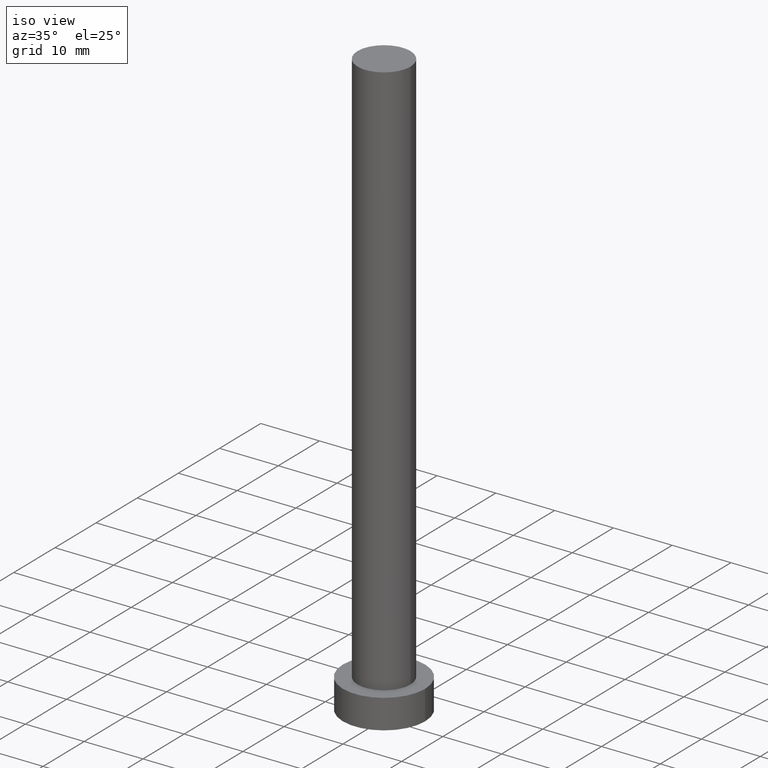
[diagram: clean part render]
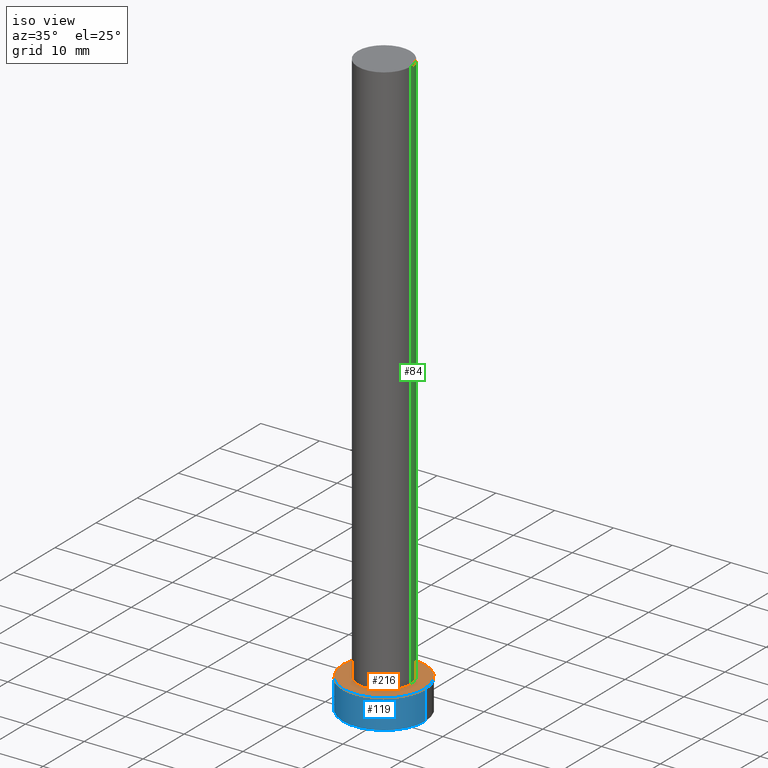
[diagram: same view with three faces highlighted in distinct colors, each labeled with its STEP entity id]
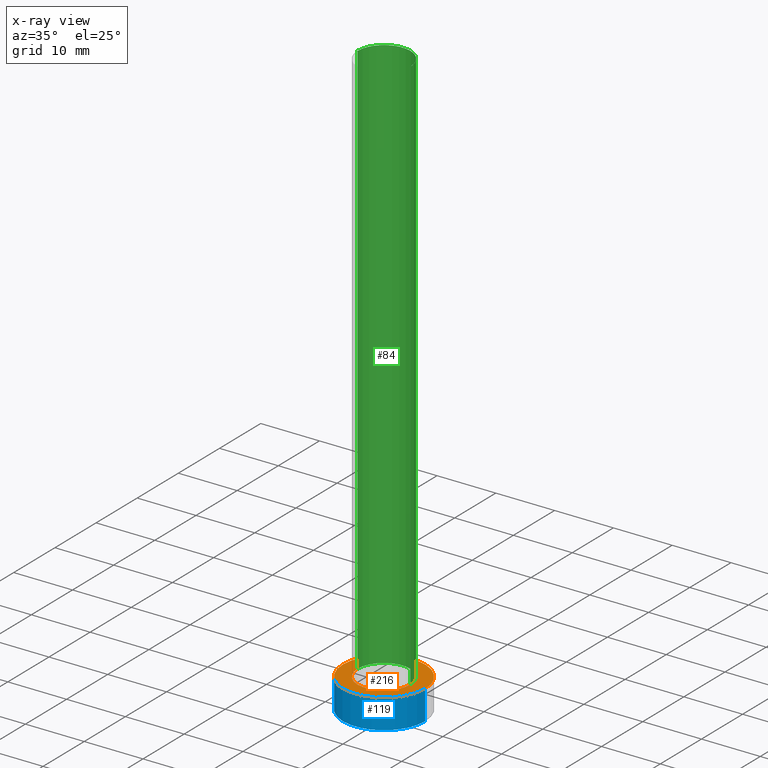
[diagram: x-ray of the same camera — body ghosted, the three highlighted faces saturated]
A machine part, iso view with three faces highlighted in distinct colors.
The next image is the same camera in x-ray (body ghosted, the three faces saturated) — at least one of them is partly hidden behind the body in this view.
Their STEP definitions:

[orange] entity #216 — the highlighted planar face has unit normal (0, 0, 1).
#15 = CARTESIAN_POINT ( 'NONE',  ( 7.000000000000000000, 8.572527594031473190E-16, 5.000000000000000000 ) ) ;
#22 = DIRECTION ( 'NONE',  ( 0.000000000000000000, 0.000000000000000000, 1.000000000000000000 ) ) ;
#25 = DIRECTION ( 'NONE',  ( 0.000000000000000000, 0.000000000000000000, 1.000000000000000000 ) ) ;
#41 = CIRCLE ( 'NONE', #193, 4.500000000000000888 ) ;
#48 = ORIENTED_EDGE ( 'NONE', *, *, #129, .F. ) ;
#49 = CARTESIAN_POINT ( 'NONE',  ( 0.000000000000000000, 0.000000000000000000, 5.000000000000000000 ) ) ;
#51 = CARTESIAN_POINT ( 'NONE',  ( -4.500000000000000888, 0.000000000000000000, 5.000000000000000000 ) ) ;
#58 = VERTEX_POINT ( 'NONE', #15 ) ;
#61 = AXIS2_PLACEMENT_3D ( 'NONE', #187, #157, #70 ) ;
#65 = AXIS2_PLACEMENT_3D ( 'NONE', #49, #222, #218 ) ;
#69 = AXIS2_PLACEMENT_3D ( 'NONE', #91, #25, #127 ) ;
#70 = DIRECTION ( 'NONE',  ( 1.000000000000000000, 0.000000000000000000, -0.000000000000000000 ) ) ;
#72 = FACE_BOUND ( 'NONE', #182, .T. ) ;
#81 = CIRCLE ( 'NONE', #65, 7.000000000000000000 ) ;
#91 = CARTESIAN_POINT ( 'NONE',  ( 0.000000000000000000, 0.000000000000000000, 5.000000000000000000 ) ) ;
#98 = CIRCLE ( 'NONE', #69, 7.000000000000000000 ) ;
#105 = DIRECTION ( 'NONE',  ( 1.000000000000000000, 0.000000000000000000, 0.000000000000000000 ) ) ;
#109 = PLANE ( 'NONE',  #61 ) ;
#112 = EDGE_LOOP ( 'NONE', ( #198, #158 ) ) ;
#118 = DIRECTION ( 'NONE',  ( 1.000000000000000000, 0.000000000000000000, 0.000000000000000000 ) ) ;
#120 = AXIS2_PLACEMENT_3D ( 'NONE', #197, #22, #105 ) ;
#127 = DIRECTION ( 'NONE',  ( 1.000000000000000000, 0.000000000000000000, 0.000000000000000000 ) ) ;
#129 = EDGE_CURVE ( 'NONE', #240, #253, #41, .T. ) ;
#157 = DIRECTION ( 'NONE',  ( 0.000000000000000000, 0.000000000000000000, 1.000000000000000000 ) ) ;
#158 = ORIENTED_EDGE ( 'NONE', *, *, #228, .T. ) ;
#163 = CARTESIAN_POINT ( 'NONE',  ( -7.000000000000000000, 0.000000000000000000, 5.000000000000000000 ) ) ;
#176 = EDGE_CURVE ( 'NONE', #183, #58, #81, .T. ) ;
#177 = CARTESIAN_POINT ( 'NONE',  ( 0.000000000000000000, 0.000000000000000000, 5.000000000000000000 ) ) ;
#181 = EDGE_CURVE ( 'NONE', #253, #240, #230, .T. ) ;
#182 = EDGE_LOOP ( 'NONE', ( #236, #48 ) ) ;
#183 = VERTEX_POINT ( 'NONE', #163 ) ;
#184 = FACE_OUTER_BOUND ( 'NONE', #112, .T. ) ;
#187 = CARTESIAN_POINT ( 'NONE',  ( 0.000000000000000000, 0.000000000000000000, 5.000000000000000000 ) ) ;
#193 = AXIS2_PLACEMENT_3D ( 'NONE', #177, #214, #118 ) ;
#197 = CARTESIAN_POINT ( 'NONE',  ( 0.000000000000000000, 0.000000000000000000, 5.000000000000000000 ) ) ;
#198 = ORIENTED_EDGE ( 'NONE', *, *, #176, .T. ) ;
#206 = CARTESIAN_POINT ( 'NONE',  ( 4.500000000000000888, 5.510910596163089556E-16, 5.000000000000000000 ) ) ;
#214 = DIRECTION ( 'NONE',  ( 0.000000000000000000, 0.000000000000000000, 1.000000000000000000 ) ) ;
#216 = ADVANCED_FACE ( 'NONE', ( #72, #184 ), #109, .T. ) ;
#218 = DIRECTION ( 'NONE',  ( 1.000000000000000000, 0.000000000000000000, 0.000000000000000000 ) ) ;
#222 = DIRECTION ( 'NONE',  ( 0.000000000000000000, 0.000000000000000000, 1.000000000000000000 ) ) ;
#228 = EDGE_CURVE ( 'NONE', #58, #183, #98, .T. ) ;
#230 = CIRCLE ( 'NONE', #120, 4.500000000000000888 ) ;
#236 = ORIENTED_EDGE ( 'NONE', *, *, #181, .F. ) ;
#240 = VERTEX_POINT ( 'NONE', #206 ) ;
#253 = VERTEX_POINT ( 'NONE', #51 ) ;

[blue] entity #119 — the highlighted cylindrical surface (partial cylindrical patch) has radius 7 mm, axis along (-0, -0, -1).
#2 = VERTEX_POINT ( 'NONE', #66 ) ;
#4 = ORIENTED_EDGE ( 'NONE', *, *, #60, .T. ) ;
#6 = VERTEX_POINT ( 'NONE', #154 ) ;
#9 = CARTESIAN_POINT ( 'NONE',  ( -7.000000000000000000, 0.000000000000000000, 5.000000000000000000 ) ) ;
#14 = ORIENTED_EDGE ( 'NONE', *, *, #176, .F. ) ;
#15 = CARTESIAN_POINT ( 'NONE',  ( 7.000000000000000000, 8.572527594031473190E-16, 5.000000000000000000 ) ) ;
#17 = ORIENTED_EDGE ( 'NONE', *, *, #106, .T. ) ;
#40 = DIRECTION ( 'NONE',  ( -0.000000000000000000, -0.000000000000000000, -1.000000000000000000 ) ) ;
#49 = CARTESIAN_POINT ( 'NONE',  ( 0.000000000000000000, 0.000000000000000000, 5.000000000000000000 ) ) ;
#57 = CARTESIAN_POINT ( 'NONE',  ( 0.000000000000000000, 0.000000000000000000, 5.000000000000000000 ) ) ;
#58 = VERTEX_POINT ( 'NONE', #15 ) ;
#60 = EDGE_CURVE ( 'NONE', #6, #2, #160, .T. ) ;
#63 = LINE ( 'NONE', #208, #144 ) ;
#65 = AXIS2_PLACEMENT_3D ( 'NONE', #49, #222, #218 ) ;
#66 = CARTESIAN_POINT ( 'NONE',  ( 7.000000000000000000, 8.572527594031473190E-16, 0.000000000000000000 ) ) ;
#74 = VECTOR ( 'NONE', #111, 1000.000000000000000 ) ;
#77 = EDGE_CURVE ( 'NONE', #58, #2, #63, .T. ) ;
#81 = CIRCLE ( 'NONE', #65, 7.000000000000000000 ) ;
#85 = DIRECTION ( 'NONE',  ( 0.000000000000000000, 0.000000000000000000, 1.000000000000000000 ) ) ;
#106 = EDGE_CURVE ( 'NONE', #183, #6, #209, .T. ) ;
#111 = DIRECTION ( 'NONE',  ( -0.000000000000000000, -0.000000000000000000, -1.000000000000000000 ) ) ;
#119 = ADVANCED_FACE ( 'NONE', ( #242 ), #241, .T. ) ;
#131 = CARTESIAN_POINT ( 'NONE',  ( 0.000000000000000000, 0.000000000000000000, 0.000000000000000000 ) ) ;
#136 = DIRECTION ( 'NONE',  ( -0.000000000000000000, -0.000000000000000000, -1.000000000000000000 ) ) ;
#144 = VECTOR ( 'NONE', #136, 1000.000000000000000 ) ;
#154 = CARTESIAN_POINT ( 'NONE',  ( -7.000000000000000000, 0.000000000000000000, 0.000000000000000000 ) ) ;
#160 = CIRCLE ( 'NONE', #195, 7.000000000000000000 ) ;
#163 = CARTESIAN_POINT ( 'NONE',  ( -7.000000000000000000, 0.000000000000000000, 5.000000000000000000 ) ) ;
#174 = DIRECTION ( 'NONE',  ( -1.000000000000000000, 0.000000000000000000, 0.000000000000000000 ) ) ;
#176 = EDGE_CURVE ( 'NONE', #183, #58, #81, .T. ) ;
#183 = VERTEX_POINT ( 'NONE', #163 ) ;
#195 = AXIS2_PLACEMENT_3D ( 'NONE', #131, #85, #229 ) ;
#204 = AXIS2_PLACEMENT_3D ( 'NONE', #57, #40, #174 ) ;
#208 = CARTESIAN_POINT ( 'NONE',  ( 7.000000000000000000, 8.572527594031473190E-16, 5.000000000000000000 ) ) ;
#209 = LINE ( 'NONE', #9, #74 ) ;
#218 = DIRECTION ( 'NONE',  ( 1.000000000000000000, 0.000000000000000000, 0.000000000000000000 ) ) ;
#222 = DIRECTION ( 'NONE',  ( 0.000000000000000000, 0.000000000000000000, 1.000000000000000000 ) ) ;
#225 = ORIENTED_EDGE ( 'NONE', *, *, #77, .F. ) ;
#229 = DIRECTION ( 'NONE',  ( 1.000000000000000000, 0.000000000000000000, 0.000000000000000000 ) ) ;
#234 = EDGE_LOOP ( 'NONE', ( #225, #14, #17, #4 ) ) ;
#241 = CYLINDRICAL_SURFACE ( 'NONE', #204, 7.000000000000000000 ) ;
#242 = FACE_OUTER_BOUND ( 'NONE', #234, .T. ) ;

[green] entity #84 — the highlighted cylindrical surface (edge-blend (fillet) strip) has radius 4.5 mm, axis along (-0, -0, -1).
#31 = CYLINDRICAL_SURFACE ( 'NONE', #151, 4.500000000000000888 ) ;
#36 = DIRECTION ( 'NONE',  ( 0.000000000000000000, 0.000000000000000000, 1.000000000000000000 ) ) ;
#37 = FACE_OUTER_BOUND ( 'NONE', #219, .T. ) ;
#38 = VECTOR ( 'NONE', #121, 1000.000000000000000 ) ;
#39 = LINE ( 'NONE', #196, #213 ) ;
#41 = CIRCLE ( 'NONE', #193, 4.500000000000000888 ) ;
#43 = DIRECTION ( 'NONE',  ( -0.000000000000000000, -0.000000000000000000, -1.000000000000000000 ) ) ;
#44 = CARTESIAN_POINT ( 'NONE',  ( 4.500000000000000888, 5.510910596163089556E-16, 100.0000000000000000 ) ) ;
#46 = CARTESIAN_POINT ( 'NONE',  ( 4.500000000000000888, 5.510910596163089556E-16, 100.0000000000000000 ) ) ;
#50 = AXIS2_PLACEMENT_3D ( 'NONE', #247, #36, #250 ) ;
#51 = CARTESIAN_POINT ( 'NONE',  ( -4.500000000000000888, 0.000000000000000000, 5.000000000000000000 ) ) ;
#62 = CARTESIAN_POINT ( 'NONE',  ( -4.500000000000000888, 0.000000000000000000, 100.0000000000000000 ) ) ;
#84 = ADVANCED_FACE ( 'NONE', ( #37 ), #31, .T. ) ;
#102 = ORIENTED_EDGE ( 'NONE', *, *, #159, .F. ) ;
#118 = DIRECTION ( 'NONE',  ( 1.000000000000000000, 0.000000000000000000, 0.000000000000000000 ) ) ;
#121 = DIRECTION ( 'NONE',  ( -0.000000000000000000, -0.000000000000000000, -1.000000000000000000 ) ) ;
#124 = ORIENTED_EDGE ( 'NONE', *, *, #129, .T. ) ;
#129 = EDGE_CURVE ( 'NONE', #240, #253, #41, .T. ) ;
#134 = DIRECTION ( 'NONE',  ( -1.000000000000000000, 0.000000000000000000, 0.000000000000000000 ) ) ;
#137 = CIRCLE ( 'NONE', #50, 4.500000000000000888 ) ;
#140 = ORIENTED_EDGE ( 'NONE', *, *, #191, .T. ) ;
#147 = VERTEX_POINT ( 'NONE', #62 ) ;
#150 = CARTESIAN_POINT ( 'NONE',  ( 0.000000000000000000, 0.000000000000000000, 100.0000000000000000 ) ) ;
#151 = AXIS2_PLACEMENT_3D ( 'NONE', #150, #227, #134 ) ;
#159 = EDGE_CURVE ( 'NONE', #179, #147, #137, .T. ) ;
#166 = EDGE_CURVE ( 'NONE', #147, #253, #39, .T. ) ;
#177 = CARTESIAN_POINT ( 'NONE',  ( 0.000000000000000000, 0.000000000000000000, 5.000000000000000000 ) ) ;
#179 = VERTEX_POINT ( 'NONE', #44 ) ;
#191 = EDGE_CURVE ( 'NONE', #179, #240, #233, .T. ) ;
#193 = AXIS2_PLACEMENT_3D ( 'NONE', #177, #214, #118 ) ;
#196 = CARTESIAN_POINT ( 'NONE',  ( -4.500000000000000888, 0.000000000000000000, 100.0000000000000000 ) ) ;
#206 = CARTESIAN_POINT ( 'NONE',  ( 4.500000000000000888, 5.510910596163089556E-16, 5.000000000000000000 ) ) ;
#213 = VECTOR ( 'NONE', #43, 1000.000000000000000 ) ;
#214 = DIRECTION ( 'NONE',  ( 0.000000000000000000, 0.000000000000000000, 1.000000000000000000 ) ) ;
#219 = EDGE_LOOP ( 'NONE', ( #102, #140, #124, #238 ) ) ;
#227 = DIRECTION ( 'NONE',  ( -0.000000000000000000, -0.000000000000000000, -1.000000000000000000 ) ) ;
#233 = LINE ( 'NONE', #46, #38 ) ;
#238 = ORIENTED_EDGE ( 'NONE', *, *, #166, .F. ) ;
#240 = VERTEX_POINT ( 'NONE', #206 ) ;
#247 = CARTESIAN_POINT ( 'NONE',  ( 0.000000000000000000, 0.000000000000000000, 100.0000000000000000 ) ) ;
#250 = DIRECTION ( 'NONE',  ( 1.000000000000000000, 0.000000000000000000, 0.000000000000000000 ) ) ;
#253 = VERTEX_POINT ( 'NONE', #51 ) ;